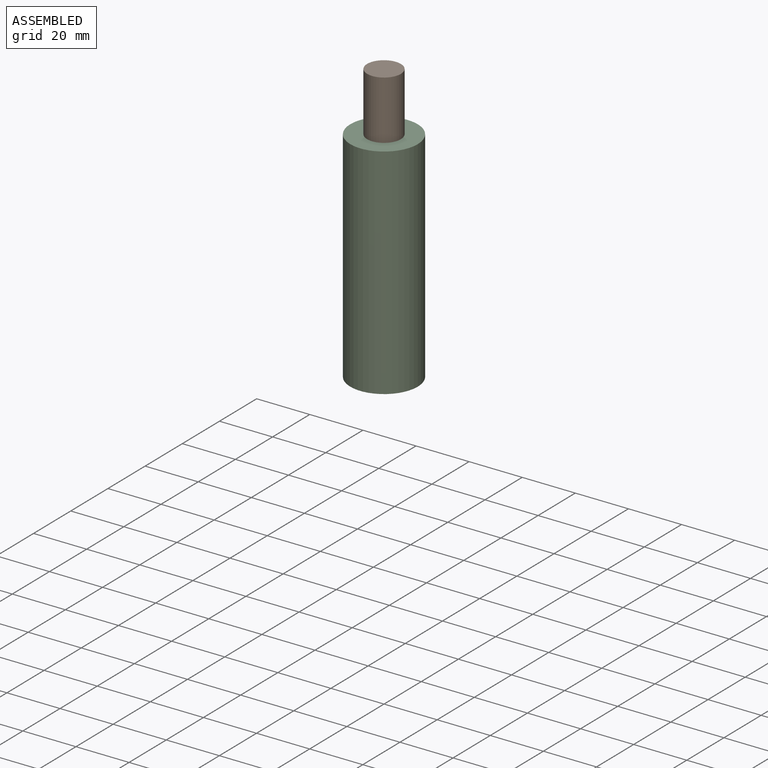
[diagram: assembled view]
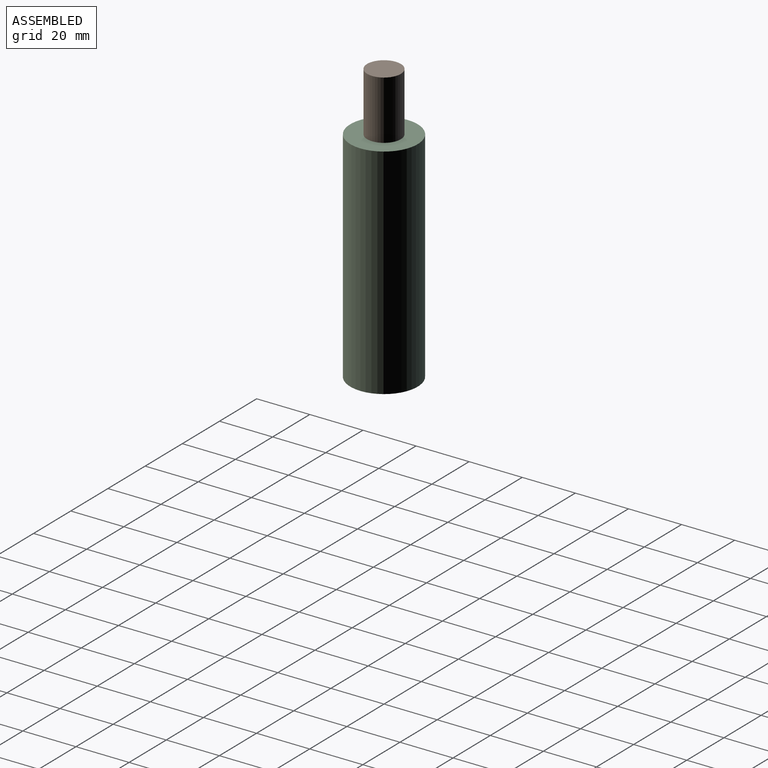
[diagram: assembled view, second angle]
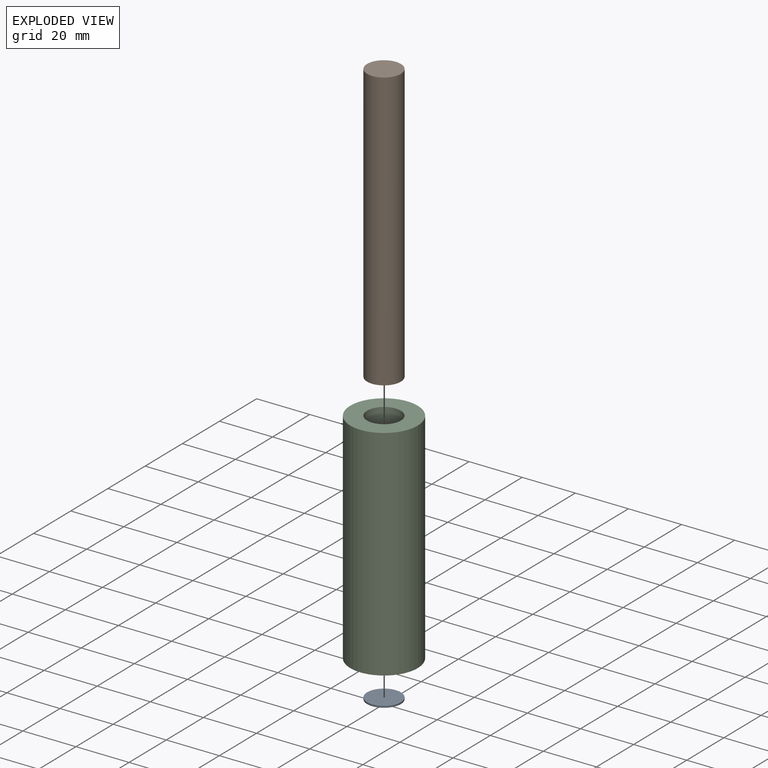
[diagram: exploded view]
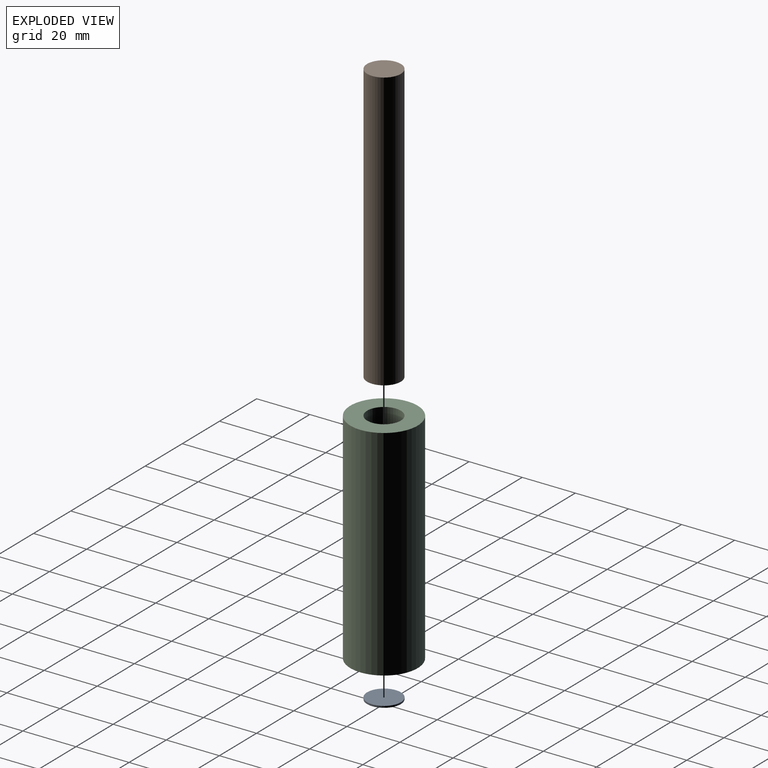
[diagram: exploded view, second angle]
ASSEMBLY  parts=3 mates=2
PART A: 3 faces, bbox 12.7x12.7x0.6 mm
  f0: cylinder r=6.35mm len=12.7mm, axis (0,0,-1), area 25.3mm2, adj f1,f2
  f1: plane 12.7x12.7mm, normal (0,0,1), area 126.7mm2, adj f0
  f2: plane 12.7x12.7mm, normal (0,0,-1), area 126.7mm2, adj f0
PART B: 3 faces, bbox 12.7x12.7x104.8 mm
  f0: cylinder r=6.35mm len=104.78mm, axis (0,0,-1), area 4180.3mm2, adj f1,f2
  f1: plane 12.7x12.7mm, normal (0,0,1), area 126.7mm2, adj f0
  f2: plane 12.7x12.7mm, normal (0,0,-1), area 126.7mm2, adj f0
PART C: 4 faces, bbox 25.4x25.4x82.6 mm
  f0: cylinder r=6.35mm len=82.55mm, axis (0,0,-1), area 3293.6mm2, adj f2,f3
  f1: cylinder r=12.7mm len=82.55mm, axis (0,0,-1), area 6587.2mm2, adj f2,f3
  f2: plane 25.4x25.4mm, normal (0,0,1), area 380mm2, adj f0,f1
  f3: plane 25.4x25.4mm, normal (0,0,-1), area 380mm2, adj f0,f1
PLACE A rot(axis=(1,0,0),180deg) t=(0,0,0)mm
PLACE B at identity
PLACE C at identity
MATE planar B.f0 <-> C.f0  axis (0,0,-1) through (0,0,0)mm
MATE planar A.f0 <-> B.f0  axis (0,0,1) through (0,0,0)mm
